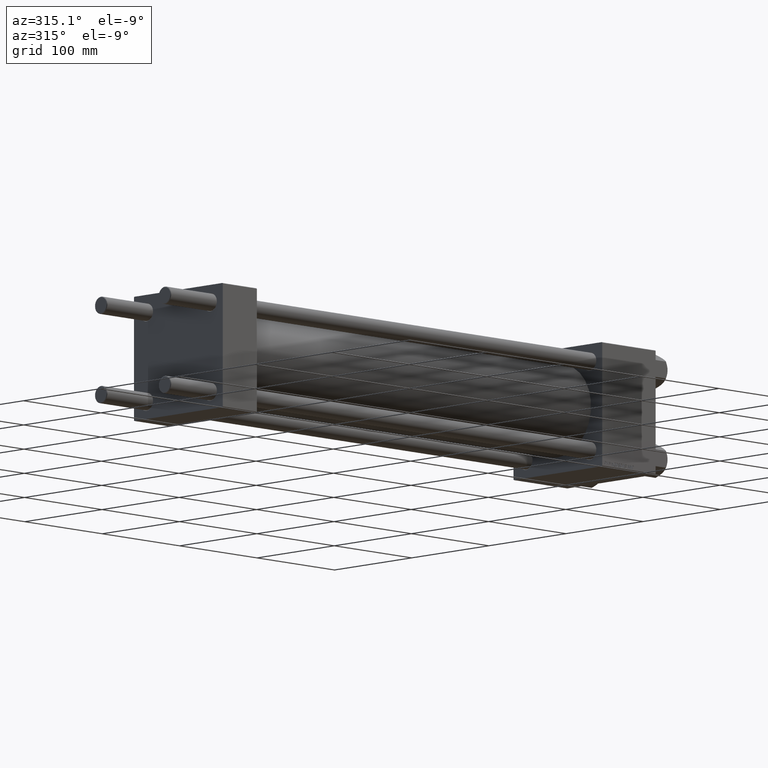
[diagram: clean part render]
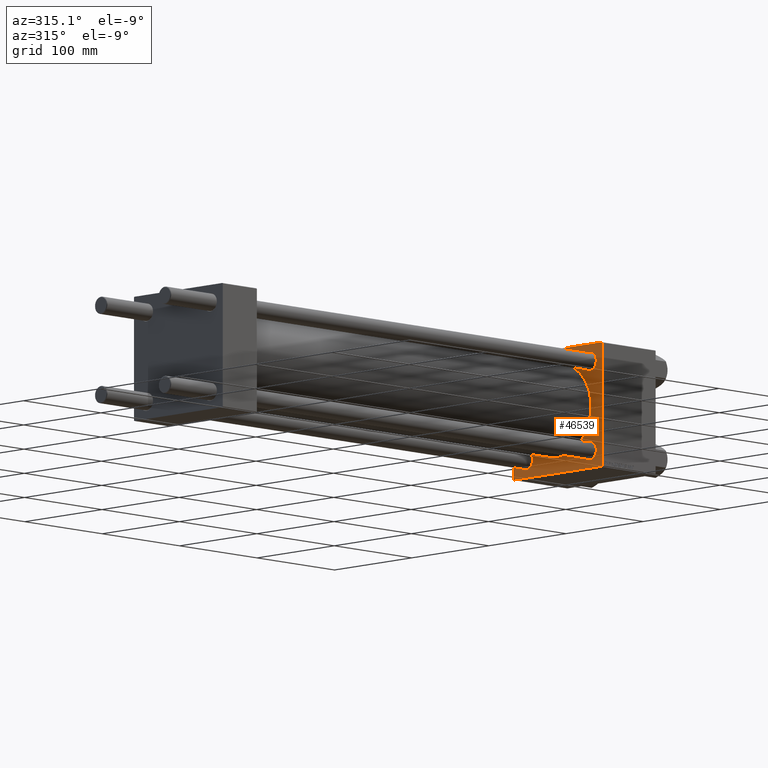
[diagram: same view with one face highlighted and labeled with its STEP entity id]
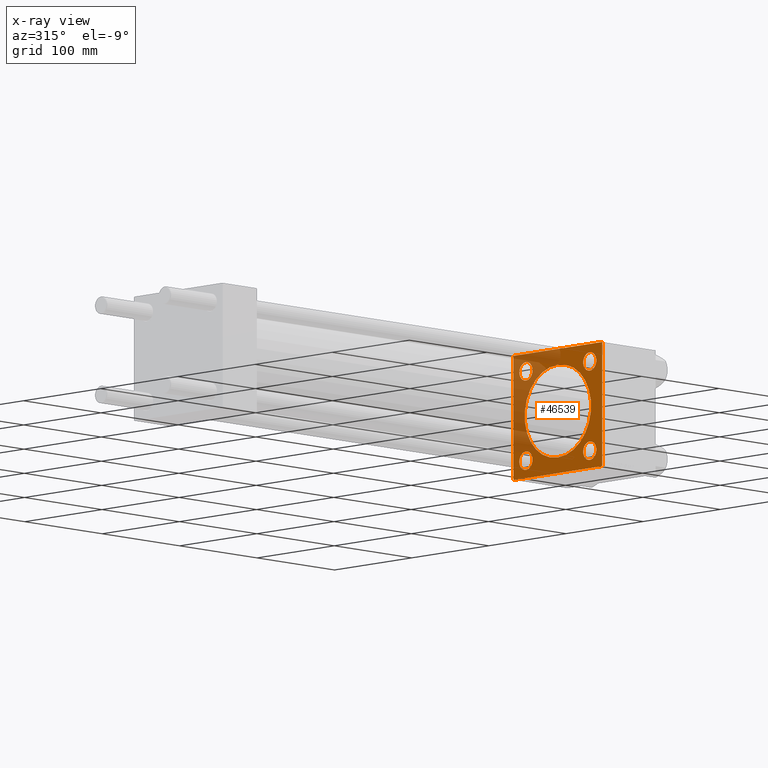
[diagram: x-ray of the same camera — body ghosted, the highlighted face saturated]
A machine part, auxiliary view. The second image highlights one B-rep face of the part: STEP entity #46539.
The next image is the same camera in x-ray: the body ghosted, the highlighted face saturated — about 34% of this face is hidden behind the body in this view.
In plain terms, the highlighted planar face has unit normal (-1, 0, 0).
Its self-contained STEP definition (entity closure, byte-faithful):
#203 = AXIS2_PLACEMENT_3D ( 'NONE', #31292, #15828, #42981 ) ;
#795 = AXIS2_PLACEMENT_3D ( 'NONE', #21546, #17499, #40594 ) ;
#808 = EDGE_CURVE ( 'NONE', #6654, #22490, #6265, .T. ) ;
#1365 = FACE_BOUND ( 'NONE', #16775, .T. ) ;
#1386 = DIRECTION ( 'NONE',  ( 1.000000000000000000, -0.000000000000000000, 0.000000000000000000 ) ) ;
#1620 = CARTESIAN_POINT ( 'NONE',  ( 490.0000000000000000, -57.24999999999962341, -57.25000000000041211 ) ) ;
#1658 = DIRECTION ( 'NONE',  ( 0.000000000000000000, 0.000000000000000000, -1.000000000000000000 ) ) ;
#1683 = CIRCLE ( 'NONE', #22751, 8.500000000000007105 ) ;
#2444 = DIRECTION ( 'NONE',  ( -0.000000000000000000, -0.7071067811865474617, -0.7071067811865474617 ) ) ;
#3181 = DIRECTION ( 'NONE',  ( 0.000000000000000000, 0.7071067811865474617, -0.7071067811865474617 ) ) ;
#3196 = CARTESIAN_POINT ( 'NONE',  ( 490.0000000000000000, 41.34999999999999432, 32.84999999999999432 ) ) ;
#4115 = VECTOR ( 'NONE', #12356, 1000.000000000000000 ) ;
#4302 = DIRECTION ( 'NONE',  ( 0.000000000000000000, 0.000000000000000000, 1.000000000000000000 ) ) ;
#4824 = EDGE_CURVE ( 'NONE', #16001, #16931, #42784, .T. ) ;
#5211 = LINE ( 'NONE', #31634, #4115 ) ;
#5214 = DIRECTION ( 'NONE',  ( 1.000000000000000000, 0.000000000000000000, 0.000000000000000000 ) ) ;
#5989 = ORIENTED_EDGE ( 'NONE', *, *, #36986, .T. ) ;
#6042 = CARTESIAN_POINT ( 'NONE',  ( 490.0000000000000000, -41.34999999999998721, -49.85000000000002274 ) ) ;
#6265 = LINE ( 'NONE', #48170, #8626 ) ;
#6654 = VERTEX_POINT ( 'NONE', #8733 ) ;
#6794 = CARTESIAN_POINT ( 'NONE',  ( 490.0000000000000000, 57.50000000000000000, -56.99999999999985789 ) ) ;
#7731 = LINE ( 'NONE', #23480, #13565 ) ;
#8500 = DIRECTION ( 'NONE',  ( -0.000000000000000000, 0.7071067811865916486, 0.7071067811865033859 ) ) ;
#8626 = VECTOR ( 'NONE', #36989, 1000.000000000000000 ) ;
#8733 = CARTESIAN_POINT ( 'NONE',  ( 490.0000000000000000, -57.49999999999999289, 56.99999999999999289 ) ) ;
#8929 = ORIENTED_EDGE ( 'NONE', *, *, #47261, .T. ) ;
#10655 = ORIENTED_EDGE ( 'NONE', *, *, #19117, .T. ) ;
#11023 = CARTESIAN_POINT ( 'NONE',  ( 490.0000000000000000, -41.34999999999998721, -41.35000000000000853 ) ) ;
#11098 = CIRCLE ( 'NONE', #34589, 8.500000000000007105 ) ;
#11149 = CARTESIAN_POINT ( 'NONE',  ( 490.0000000000000000, 41.34999999999999432, -41.35000000000000142 ) ) ;
#11351 = CARTESIAN_POINT ( 'NONE',  ( 490.0000000000000000, -41.34999999999998721, 41.35000000000000853 ) ) ;
#11706 = EDGE_CURVE ( 'NONE', #17978, #34262, #5211, .T. ) ;
#11987 = AXIS2_PLACEMENT_3D ( 'NONE', #13939, #25097, #36769 ) ;
#12038 = EDGE_CURVE ( 'NONE', #35099, #38721, #1683, .T. ) ;
#12356 = DIRECTION ( 'NONE',  ( 0.000000000000000000, -1.000000000000000000, -1.206764157201257291E-16 ) ) ;
#12912 = CIRCLE ( 'NONE', #38042, 43.00000000000000000 ) ;
#13073 = DIRECTION ( 'NONE',  ( -1.000000000000000000, 0.000000000000000000, -0.000000000000000000 ) ) ;
#13232 = AXIS2_PLACEMENT_3D ( 'NONE', #11351, #39012, #35453 ) ;
#13317 = ORIENTED_EDGE ( 'NONE', *, *, #46329, .T. ) ;
#13565 = VECTOR ( 'NONE', #8500, 1000.000000000000000 ) ;
#13792 = AXIS2_PLACEMENT_3D ( 'NONE', #32338, #13073, #44028 ) ;
#13939 = CARTESIAN_POINT ( 'NONE',  ( 490.0000000000000000, 41.34999999999999432, 41.35000000000000142 ) ) ;
#14595 = DIRECTION ( 'NONE',  ( 0.000000000000000000, 0.000000000000000000, -1.000000000000000000 ) ) ;
#14597 = CARTESIAN_POINT ( 'NONE',  ( 490.0000000000000000, 41.34999999999999432, 49.85000000000001563 ) ) ;
#14716 = EDGE_CURVE ( 'NONE', #48469, #29379, #44205, .T. ) ;
#15168 = CARTESIAN_POINT ( 'NONE',  ( 490.0000000000000000, 0.000000000000000000, 43.00000000000000000 ) ) ;
#15623 = CIRCLE ( 'NONE', #203, 8.500000000000007105 ) ;
#15828 = DIRECTION ( 'NONE',  ( 1.000000000000000000, -0.000000000000000000, 0.000000000000000000 ) ) ;
#16001 = VERTEX_POINT ( 'NONE', #3196 ) ;
#16624 = FACE_BOUND ( 'NONE', #23369, .T. ) ;
#16767 = LINE ( 'NONE', #36061, #17286 ) ;
#16775 = EDGE_LOOP ( 'NONE', ( #24789, #40412 ) ) ;
#16862 = DIRECTION ( 'NONE',  ( 0.000000000000000000, -0.7071067811865524577, 0.7071067811865426878 ) ) ;
#16864 = FACE_OUTER_BOUND ( 'NONE', #48465, .T. ) ;
#16931 = VERTEX_POINT ( 'NONE', #14597 ) ;
#16994 = CARTESIAN_POINT ( 'NONE',  ( 490.0000000000000000, -57.49999999999999289, -57.00000000000003553 ) ) ;
#17026 = EDGE_CURVE ( 'NONE', #26922, #40665, #21592, .T. ) ;
#17286 = VECTOR ( 'NONE', #32239, 1000.000000000000000 ) ;
#17372 = ORIENTED_EDGE ( 'NONE', *, *, #12038, .T. ) ;
#17440 = CARTESIAN_POINT ( 'NONE',  ( 490.0000000000000000, 57.24999999999992895, -57.24999999999992895 ) ) ;
#17499 = DIRECTION ( 'NONE',  ( 1.000000000000000000, 0.000000000000000000, 0.000000000000000000 ) ) ;
#17978 = VERTEX_POINT ( 'NONE', #27599 ) ;
#18571 = ORIENTED_EDGE ( 'NONE', *, *, #18779, .T. ) ;
#18779 = EDGE_CURVE ( 'NONE', #16931, #16001, #11098, .T. ) ;
#19117 = EDGE_CURVE ( 'NONE', #6654, #34262, #7731, .T. ) ;
#19450 = VERTEX_POINT ( 'NONE', #27973 ) ;
#21057 = CARTESIAN_POINT ( 'NONE',  ( 490.0000000000000000, -41.34999999999998721, 32.85000000000000142 ) ) ;
#21232 = CIRCLE ( 'NONE', #45561, 8.500000000000007105 ) ;
#21546 = CARTESIAN_POINT ( 'NONE',  ( 490.0000000000000000, 0.000000000000000000, 0.000000000000000000 ) ) ;
#21592 = CIRCLE ( 'NONE', #36204, 8.500000000000007105 ) ;
#22204 = LINE ( 'NONE', #33862, #24223 ) ;
#22490 = VERTEX_POINT ( 'NONE', #16994 ) ;
#22666 = DIRECTION ( 'NONE',  ( 1.000000000000000000, -0.000000000000000000, 0.000000000000000000 ) ) ;
#22694 = CIRCLE ( 'NONE', #795, 43.00000000000000000 ) ;
#22751 = AXIS2_PLACEMENT_3D ( 'NONE', #11149, #49000, #29948 ) ;
#23088 = CARTESIAN_POINT ( 'NONE',  ( 490.0000000000000000, 41.34999999999999432, 41.35000000000000142 ) ) ;
#23369 = EDGE_LOOP ( 'NONE', ( #32878, #43488 ) ) ;
#23480 = CARTESIAN_POINT ( 'NONE',  ( 490.0000000000000000, -57.24999999999640465, 57.25000000000355271 ) ) ;
#23485 = VECTOR ( 'NONE', #2444, 1000.000000000000114 ) ;
#24223 = VECTOR ( 'NONE', #14595, 1000.000000000000000 ) ;
#24527 = CARTESIAN_POINT ( 'NONE',  ( 490.0000000000000000, 0.000000000000000000, 0.000000000000000000 ) ) ;
#24789 = ORIENTED_EDGE ( 'NONE', *, *, #34492, .T. ) ;
#25097 = DIRECTION ( 'NONE',  ( 1.000000000000000000, -0.000000000000000000, 0.000000000000000000 ) ) ;
#26201 = CIRCLE ( 'NONE', #13232, 8.500000000000007105 ) ;
#26768 = CARTESIAN_POINT ( 'NONE',  ( 490.0000000000000000, -41.34999999999998721, -32.85000000000000142 ) ) ;
#26922 = VERTEX_POINT ( 'NONE', #6042 ) ;
#27484 = CARTESIAN_POINT ( 'NONE',  ( 490.0000000000000000, -41.34999999999998721, -41.35000000000000853 ) ) ;
#27599 = CARTESIAN_POINT ( 'NONE',  ( 490.0000000000000000, 57.00000000000005684, 57.50000000000000711 ) ) ;
#27973 = CARTESIAN_POINT ( 'NONE',  ( 490.0000000000000000, 5.265981236333616893E-15, -43.00000000000000000 ) ) ;
#28048 = VERTEX_POINT ( 'NONE', #15168 ) ;
#28290 = FACE_BOUND ( 'NONE', #43616, .T. ) ;
#28789 = LINE ( 'NONE', #1620, #48782 ) ;
#28877 = EDGE_CURVE ( 'NONE', #41247, #35894, #41029, .T. ) ;
#29047 = CARTESIAN_POINT ( 'NONE',  ( 490.0000000000000000, 57.50000000000000000, 57.00000000000006395 ) ) ;
#29379 = VERTEX_POINT ( 'NONE', #21057 ) ;
#29886 = CARTESIAN_POINT ( 'NONE',  ( 490.0000000000000000, 41.34999999999999432, -32.84999999999999432 ) ) ;
#29948 = DIRECTION ( 'NONE',  ( 0.000000000000000000, 0.000000000000000000, 1.000000000000000000 ) ) ;
#30693 = DIRECTION ( 'NONE',  ( 1.000000000000000000, -0.000000000000000000, 0.000000000000000000 ) ) ;
#30738 = ORIENTED_EDGE ( 'NONE', *, *, #4824, .T. ) ;
#30748 = ORIENTED_EDGE ( 'NONE', *, *, #11706, .F. ) ;
#30808 = DIRECTION ( 'NONE',  ( 1.000000000000000000, -0.000000000000000000, 0.000000000000000000 ) ) ;
#31041 = ORIENTED_EDGE ( 'NONE', *, *, #44255, .T. ) ;
#31292 = CARTESIAN_POINT ( 'NONE',  ( 490.0000000000000000, 41.34999999999999432, -41.35000000000000142 ) ) ;
#31634 = CARTESIAN_POINT ( 'NONE',  ( 490.0000000000000000, 57.50000000000000000, 57.50000000000000711 ) ) ;
#32239 = DIRECTION ( 'NONE',  ( 0.000000000000000000, -1.000000000000000000, -1.206764157201257291E-16 ) ) ;
#32338 = CARTESIAN_POINT ( 'NONE',  ( 490.0000000000000000, 0.000000000000000000, 0.000000000000000000 ) ) ;
#32841 = FACE_BOUND ( 'NONE', #42647, .T. ) ;
#32878 = ORIENTED_EDGE ( 'NONE', *, *, #14716, .T. ) ;
#33862 = CARTESIAN_POINT ( 'NONE',  ( 490.0000000000000000, 57.50000000000000000, 57.50000000000000711 ) ) ;
#34157 = ORIENTED_EDGE ( 'NONE', *, *, #34311, .T. ) ;
#34262 = VERTEX_POINT ( 'NONE', #43776 ) ;
#34311 = EDGE_CURVE ( 'NONE', #41984, #22490, #28789, .T. ) ;
#34481 = EDGE_LOOP ( 'NONE', ( #5989, #17372 ) ) ;
#34492 = EDGE_CURVE ( 'NONE', #40665, #26922, #21232, .T. ) ;
#34589 = AXIS2_PLACEMENT_3D ( 'NONE', #23088, #30693, #4302 ) ;
#35099 = VERTEX_POINT ( 'NONE', #46403 ) ;
#35453 = DIRECTION ( 'NONE',  ( 0.000000000000000000, 0.000000000000000000, 1.000000000000000000 ) ) ;
#35894 = VERTEX_POINT ( 'NONE', #49225 ) ;
#36061 = CARTESIAN_POINT ( 'NONE',  ( 490.0000000000000000, 57.50000000000000000, -57.49999999999996447 ) ) ;
#36204 = AXIS2_PLACEMENT_3D ( 'NONE', #11023, #30808, #37678 ) ;
#36769 = DIRECTION ( 'NONE',  ( 0.000000000000000000, 0.000000000000000000, 1.000000000000000000 ) ) ;
#36986 = EDGE_CURVE ( 'NONE', #38721, #35099, #15623, .T. ) ;
#36989 = DIRECTION ( 'NONE',  ( 0.000000000000000000, 0.000000000000000000, -1.000000000000000000 ) ) ;
#37678 = DIRECTION ( 'NONE',  ( 0.000000000000000000, 0.000000000000000000, 1.000000000000000000 ) ) ;
#37956 = CARTESIAN_POINT ( 'NONE',  ( 490.0000000000000000, 57.25000000000003553, 57.25000000000003553 ) ) ;
#38042 = AXIS2_PLACEMENT_3D ( 'NONE', #24527, #5214, #1658 ) ;
#38132 = ORIENTED_EDGE ( 'NONE', *, *, #38248, .T. ) ;
#38248 = EDGE_CURVE ( 'NONE', #35894, #41984, #16767, .T. ) ;
#38721 = VERTEX_POINT ( 'NONE', #29886 ) ;
#39012 = DIRECTION ( 'NONE',  ( 1.000000000000000000, -0.000000000000000000, 0.000000000000000000 ) ) ;
#39739 = CARTESIAN_POINT ( 'NONE',  ( 490.0000000000000000, -41.34999999999998721, 41.35000000000000853 ) ) ;
#39960 = FACE_BOUND ( 'NONE', #34481, .T. ) ;
#40412 = ORIENTED_EDGE ( 'NONE', *, *, #17026, .T. ) ;
#40594 = DIRECTION ( 'NONE',  ( 0.000000000000000000, 0.000000000000000000, -1.000000000000000000 ) ) ;
#40665 = VERTEX_POINT ( 'NONE', #26768 ) ;
#41029 = LINE ( 'NONE', #17440, #23485 ) ;
#41247 = VERTEX_POINT ( 'NONE', #6794 ) ;
#41267 = EDGE_CURVE ( 'NONE', #29379, #48469, #26201, .T. ) ;
#41920 = ORIENTED_EDGE ( 'NONE', *, *, #28877, .T. ) ;
#41984 = VERTEX_POINT ( 'NONE', #49583 ) ;
#42525 = ORIENTED_EDGE ( 'NONE', *, *, #49527, .T. ) ;
#42647 = EDGE_LOOP ( 'NONE', ( #8929, #42525 ) ) ;
#42784 = CIRCLE ( 'NONE', #11987, 8.500000000000007105 ) ;
#42981 = DIRECTION ( 'NONE',  ( 0.000000000000000000, 0.000000000000000000, 1.000000000000000000 ) ) ;
#43301 = DIRECTION ( 'NONE',  ( 0.000000000000000000, 0.000000000000000000, 1.000000000000000000 ) ) ;
#43488 = ORIENTED_EDGE ( 'NONE', *, *, #41267, .T. ) ;
#43616 = EDGE_LOOP ( 'NONE', ( #18571, #30738 ) ) ;
#43747 = VECTOR ( 'NONE', #3181, 1000.000000000000114 ) ;
#43776 = CARTESIAN_POINT ( 'NONE',  ( 490.0000000000000000, -56.99999999999993605, 57.49999999999999289 ) ) ;
#44028 = DIRECTION ( 'NONE',  ( -0.000000000000000000, 0.000000000000000000, 1.000000000000000000 ) ) ;
#44205 = CIRCLE ( 'NONE', #47480, 8.500000000000007105 ) ;
#44255 = EDGE_CURVE ( 'NONE', #47858, #41247, #22204, .T. ) ;
#45084 = LINE ( 'NONE', #37956, #43747 ) ;
#45561 = AXIS2_PLACEMENT_3D ( 'NONE', #27484, #22666, #50061 ) ;
#45853 = CARTESIAN_POINT ( 'NONE',  ( 490.0000000000000000, -41.34999999999998721, 49.85000000000002274 ) ) ;
#46329 = EDGE_CURVE ( 'NONE', #17978, #47858, #45084, .T. ) ;
#46403 = CARTESIAN_POINT ( 'NONE',  ( 490.0000000000000000, 41.34999999999999432, -49.85000000000001563 ) ) ;
#46539 = ADVANCED_FACE ( 'NONE', ( #16624, #28290, #39960, #1365, #32841, #16864 ), #48336, .T. ) ;
#47261 = EDGE_CURVE ( 'NONE', #28048, #19450, #22694, .T. ) ;
#47480 = AXIS2_PLACEMENT_3D ( 'NONE', #39739, #1386, #43301 ) ;
#47858 = VERTEX_POINT ( 'NONE', #29047 ) ;
#47979 = ORIENTED_EDGE ( 'NONE', *, *, #808, .F. ) ;
#48170 = CARTESIAN_POINT ( 'NONE',  ( 490.0000000000000000, -57.49999999999999289, 57.49999999999999289 ) ) ;
#48336 = PLANE ( 'NONE',  #13792 ) ;
#48465 = EDGE_LOOP ( 'NONE', ( #38132, #34157, #47979, #10655, #30748, #13317, #31041, #41920 ) ) ;
#48469 = VERTEX_POINT ( 'NONE', #45853 ) ;
#48782 = VECTOR ( 'NONE', #16862, 1000.000000000000000 ) ;
#49000 = DIRECTION ( 'NONE',  ( 1.000000000000000000, -0.000000000000000000, 0.000000000000000000 ) ) ;
#49225 = CARTESIAN_POINT ( 'NONE',  ( 490.0000000000000000, 56.99999999999989342, -57.49999999999996447 ) ) ;
#49527 = EDGE_CURVE ( 'NONE', #19450, #28048, #12912, .T. ) ;
#49583 = CARTESIAN_POINT ( 'NONE',  ( 490.0000000000000000, -57.00000000000004263, -57.49999999999997868 ) ) ;
#50061 = DIRECTION ( 'NONE',  ( 0.000000000000000000, 0.000000000000000000, 1.000000000000000000 ) ) ;